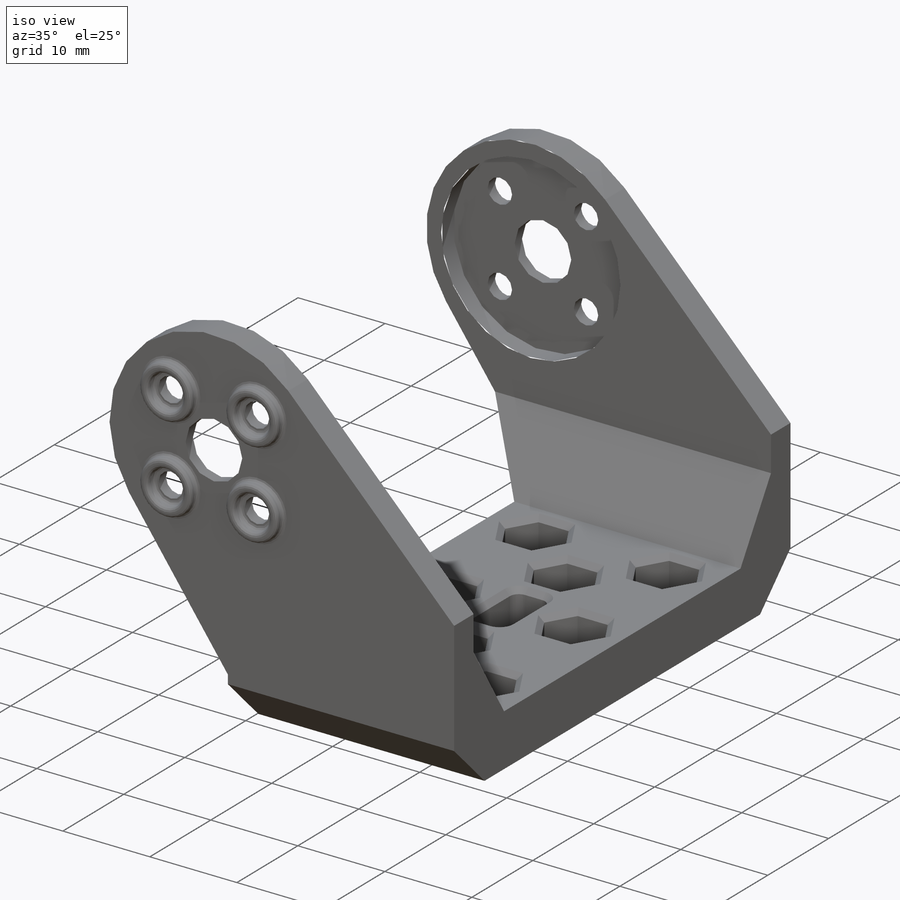
[diagram: iso view]
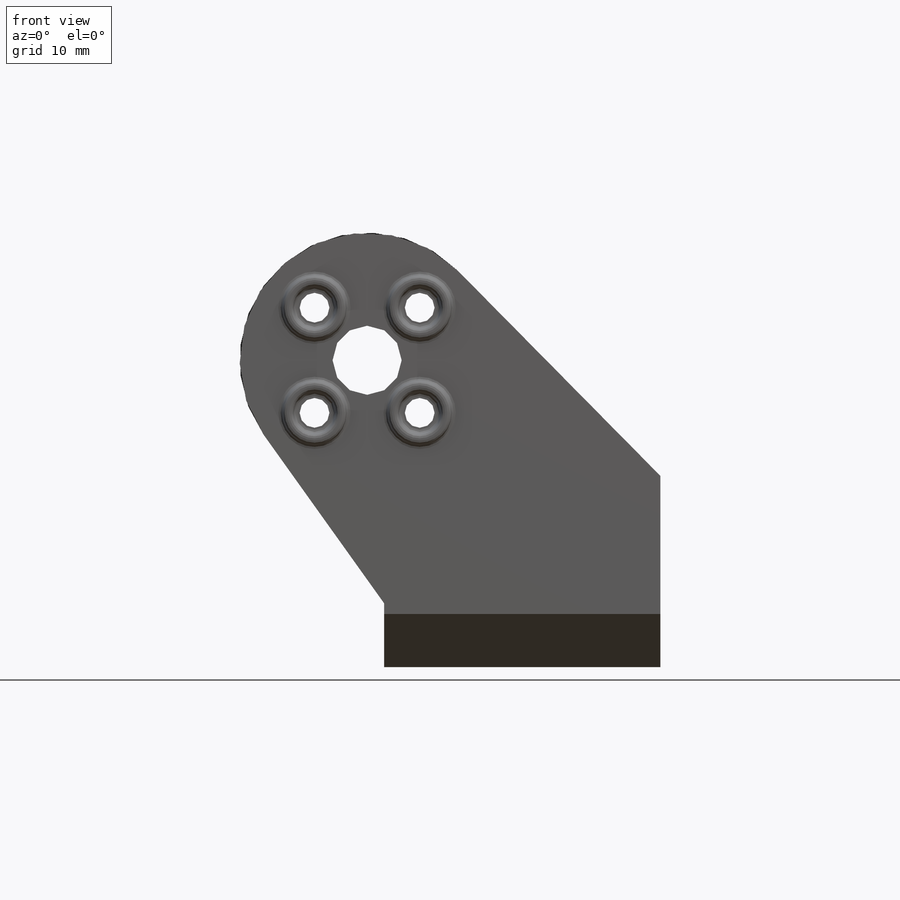
[diagram: front view]
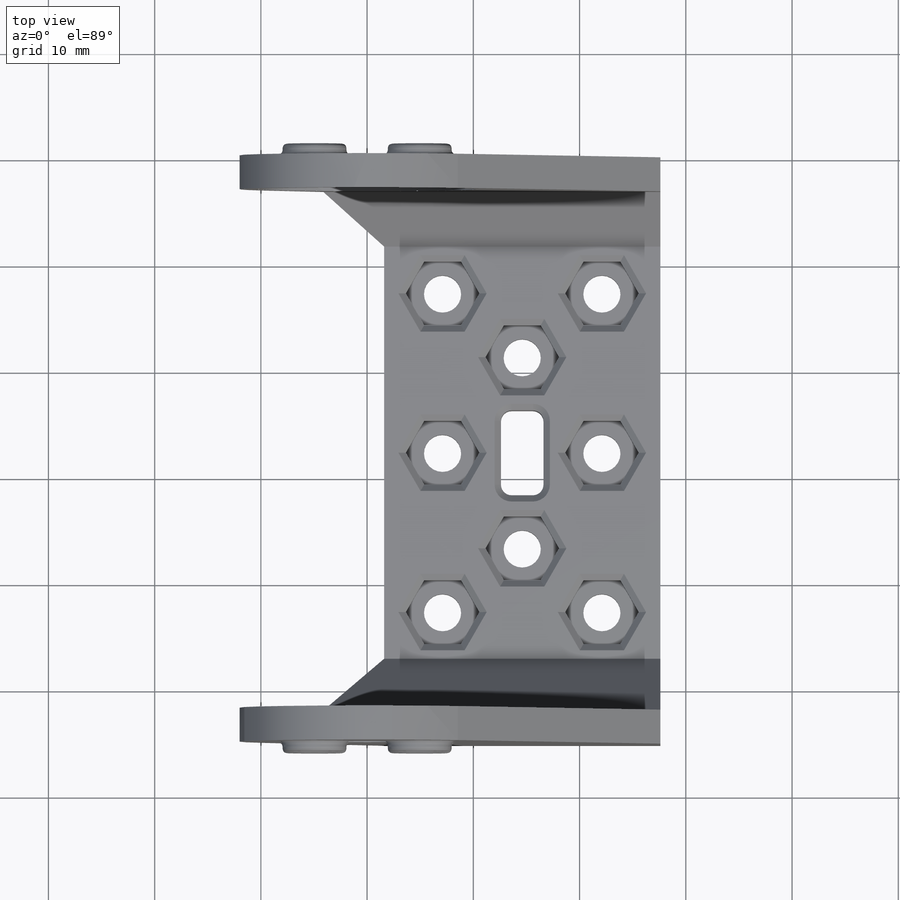
[diagram: top view]
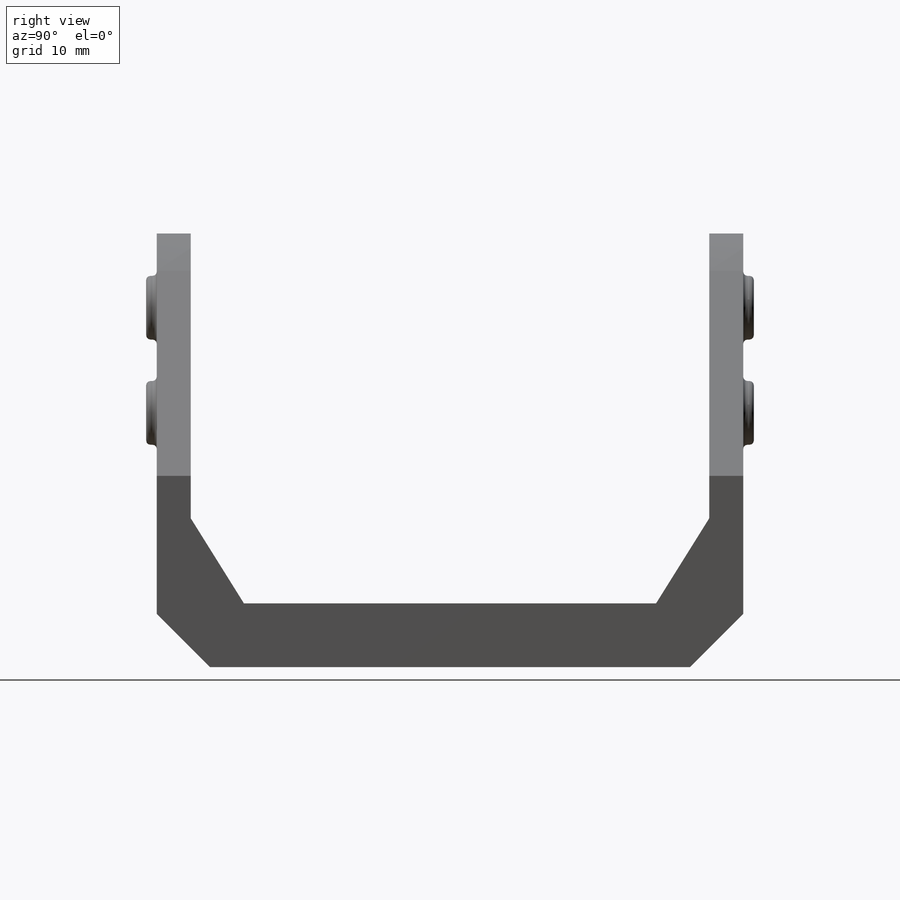
[diagram: right view]
SOLIDWORKS PART (.sldprt)
format: sldprt  version: not decoded by parser v0  size: 761,344 bytes
history: native  units: mm
features: sketch x9, extrude x5, cut_extrude x4, chamfer x4, plane x3, material x1, fillet x1 (+10 scaffold rows collapsed)
feature tree (37):
  scaffold x10  (default folders/planes/origin — collapsed)
  material  "Материал <не указан>"
  plane  "Спереди"
  plane  "Сверху"
  plane  "Справа"
  sketch  "Эскиз1"  dims[c1.D1=6.5mm c1.D3=2.8mm c1.D6=20.0mm c1.D9=2.0mm c1.D15=23.0mm c1.D16=~27.615245mm c1.D17=23.0mm c1.D21=5.0mm c1.D22=15.0mm c1.D23=10.0mm c1.D20=24.0mm c1.D2=14.0mm c1.D4=66.5mm c1.D5=14.6mm c1.D7=27.5mm c1.D8=7.5mm c1.D10=15.0mm c1.D11=15.0mm c1.D12=30.0mm c1.D13=20.0mm c1.D14=40.0mm c2.D16=10.0mm c2.D17=27.75mm c2.D18=7.5mm c2.D19=7.0mm c3.D18=3.0mm c3.D20=8.0mm c3.D21=~14.660344mm c3.D24=27.75mm c3.D25=7.0mm c3.D26=7.0mm c3.D15=6.0mm c3.D17=14.0mm c4.D18=24.0mm c4.D20=2.5mm c4.D10=28.0mm c4.D21=10.0mm c5.D10=6.0mm c5.D21=26.0mm c5.D22=12.0mm c6.D21=26.0mm c6.D10=18.0mm c6.D22=6.0mm c7.D10=18.0mm]
  extrude  "Бобышка-Вытянуть1"  Depth=3.2mm
  sketch  "Эскиз2"
  extrude  "Бобышка-Вытянуть2"  Depth=48.8mm
  sketch  "Эскиз3"  dims[D1=0.0mm]
  extrude  "Бобышка-Вытянуть3"  Depth=3.2mm
  sketch  "Эскиз4"  dims[D1=20.6mm]
  cut_extrude  "Вырез-Вытянуть1"  Depth=2mm
  sketch  "Эскиз5"
  cut_extrude  "Вырез-Вытянуть2"  Depth=2mm
  chamfer  "Фаска1"  Distance=5mm Angle=45deg
  sketch  "Эскиз6"  dims[D1=4.0mm D2=1.0mm]
  extrude  "Бобышка-Вытянуть4"  Depth=1mm
  sketch  "Эскиз7"
  extrude  "Бобышка-Вытянуть5"  Depth=1mm
  fillet  "Скругление1"  Radius=0.4mm
  sketch  "Эскиз8"  dims[D3=3.5mm D7=1.0mm D1=15.0mm D2=30.0mm D4=6.0mm D5=4.0mm D6=8.0mm]
  cut_extrude  "Вырез-Вытянуть3"  [1 undecoded]
  sketch  "Эскиз9"  dims[D1=6.0mm]
  cut_extrude  "Вырез-Вытянуть4"  Depth=3.5mm
  chamfer  "Фаска4"  Distance=8mm
  chamfer  "Фаска5"  Distance=5mm
  chamfer  "Фаска6"  Distance=0.6mm Angle=45deg
decode coverage: 19 of 23 modeling features carry decoded parameters
note: ~ marks probable driven/reference dimensions
note: 1 parameter value undecoded
note: suppression state not decoded; provenance and decode notes live in map.json
